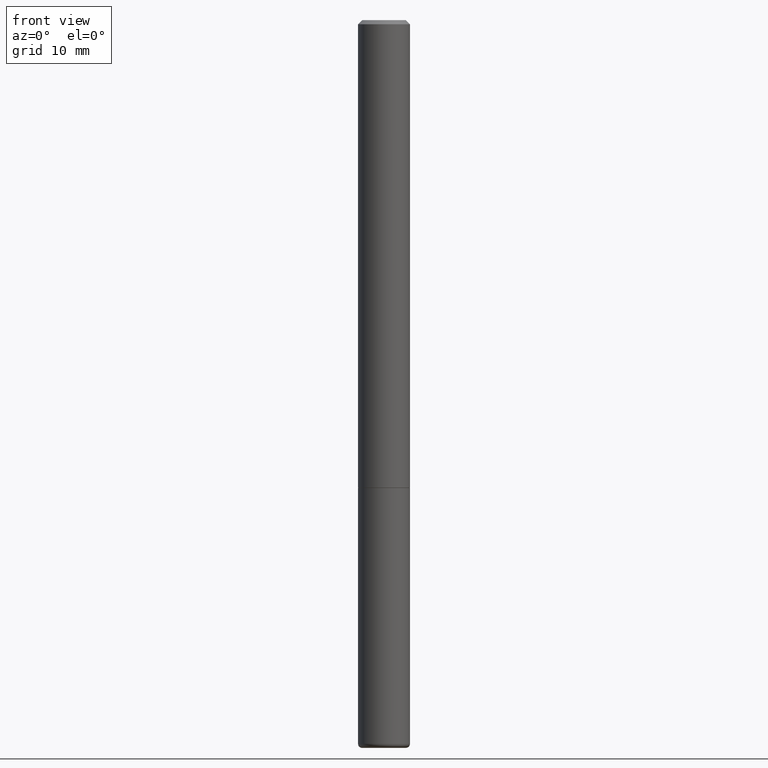
[diagram: clean part render]
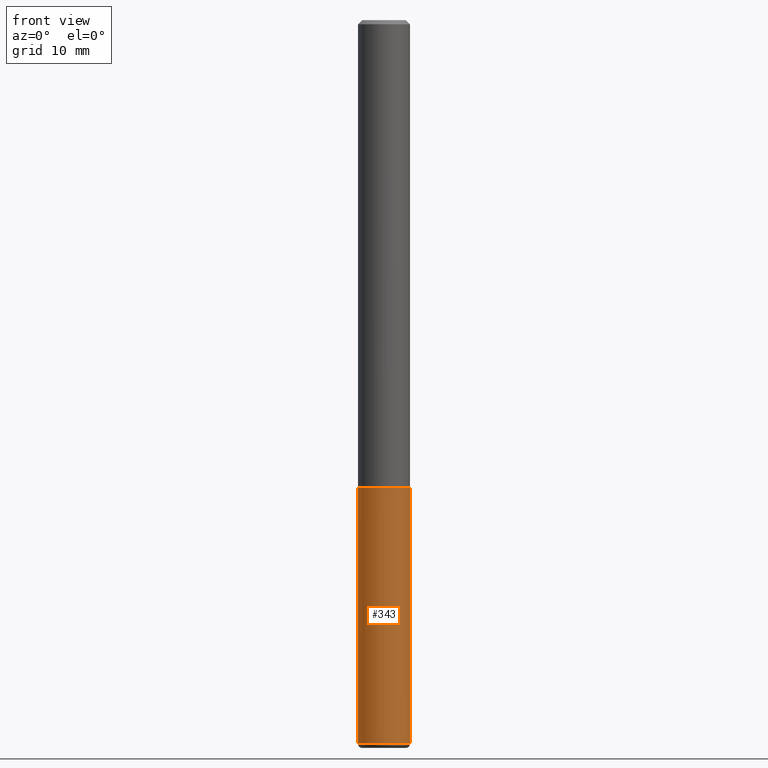
[diagram: same view with one face highlighted and labeled with its STEP entity id]
A machine part, front view. The second image highlights one B-rep face of the part: STEP entity #343.
In plain terms, the highlighted cylindrical surface (edge-blend (fillet) strip) has radius 3.175 mm, axis along (-0, 0, 1).
Its self-contained STEP definition (entity closure, byte-faithful):
#9 = VERTEX_POINT ( 'NONE', #140 ) ;
#11 = CYLINDRICAL_SURFACE ( 'NONE', #457, 0.1250000000000000278 ) ;
#15 = VERTEX_POINT ( 'NONE', #224 ) ;
#29 = DIRECTION ( 'NONE',  ( -2.445468806185136877E-29, 3.491481338843145188E-15, 1.000000000000000000 ) ) ;
#48 = AXIS2_PLACEMENT_3D ( 'NONE', #311, #149, #83 ) ;
#49 = CARTESIAN_POINT ( 'NONE',  ( -0.1250000000000000278, -9.114916945534594439E-15, -3.480000761538716514 ) ) ;
#68 = EDGE_CURVE ( 'NONE', #340, #9, #297, .T. ) ;
#69 = CARTESIAN_POINT ( 'NONE',  ( 0.1250000000000000278, -8.728703347107836346E-16, 6.095220969744921142E-30 ) ) ;
#78 = CARTESIAN_POINT ( 'NONE',  ( 0.1250000000000000278, -8.728703347107860209E-15, -2.249999999999999556 ) ) ;
#83 = DIRECTION ( 'NONE',  ( 1.000000000000000000, -6.982962677686261189E-15, 0.000000000000000000 ) ) ;
#85 = CARTESIAN_POINT ( 'NONE',  ( 5.502304813916556222E-29, -7.855833012397075293E-15, -2.249999999999999556 ) ) ;
#93 = EDGE_LOOP ( 'NONE', ( #207, #436, #284, #320 ) ) ;
#102 = EDGE_CURVE ( 'NONE', #15, #173, #379, .T. ) ;
#140 = CARTESIAN_POINT ( 'NONE',  ( -0.1250000000000000278, -9.114916945534594439E-15, -2.249999999999999556 ) ) ;
#149 = DIRECTION ( 'NONE',  ( -2.445468806185136597E-29, 3.491481338843145583E-15, 1.000000000000000000 ) ) ;
#152 = VECTOR ( 'NONE', #29, 39.37007874015748143 ) ;
#165 = CARTESIAN_POINT ( 'NONE',  ( 0.000000000000000000, 0.000000000000000000, 0.000000000000000000 ) ) ;
#173 = VERTEX_POINT ( 'NONE', #78 ) ;
#183 = EDGE_CURVE ( 'NONE', #340, #15, #195, .T. ) ;
#195 = CIRCLE ( 'NONE', #48, 0.1250000000000000278 ) ;
#206 = FACE_OUTER_BOUND ( 'NONE', #93, .T. ) ;
#207 = ORIENTED_EDGE ( 'NONE', *, *, #68, .F. ) ;
#224 = CARTESIAN_POINT ( 'NONE',  ( 0.1250000000000000278, -1.302322805278314581E-14, -3.480000761538716514 ) ) ;
#227 = DIRECTION ( 'NONE',  ( -2.445468806185136877E-29, 3.491481338843145188E-15, 1.000000000000000000 ) ) ;
#240 = DIRECTION ( 'NONE',  ( -2.445468806185136597E-29, 3.491481338843145583E-15, 1.000000000000000000 ) ) ;
#262 = DIRECTION ( 'NONE',  ( 1.000000000000000000, -6.982962677686267499E-15, 4.876176775795935793E-29 ) ) ;
#284 = ORIENTED_EDGE ( 'NONE', *, *, #102, .T. ) ;
#297 = LINE ( 'NONE', #376, #483 ) ;
#311 = CARTESIAN_POINT ( 'NONE',  ( 8.510233307843451119E-29, -1.215035771807236405E-14, -3.480000761538716514 ) ) ;
#313 = EDGE_CURVE ( 'NONE', #9, #173, #429, .T. ) ;
#320 = ORIENTED_EDGE ( 'NONE', *, *, #313, .F. ) ;
#340 = VERTEX_POINT ( 'NONE', #49 ) ;
#343 = ADVANCED_FACE ( 'NONE', ( #206 ), #11, .T. ) ;
#376 = CARTESIAN_POINT ( 'NONE',  ( -0.1250000000000000278, 8.881784197001254296E-16, -6.148668862818634329E-30 ) ) ;
#379 = LINE ( 'NONE', #69, #152 ) ;
#390 = DIRECTION ( 'NONE',  ( 1.000000000000000000, -6.982962677686269077E-15, 0.000000000000000000 ) ) ;
#429 = CIRCLE ( 'NONE', #476, 0.1250000000000000278 ) ;
#436 = ORIENTED_EDGE ( 'NONE', *, *, #183, .T. ) ;
#450 = DIRECTION ( 'NONE',  ( -2.445468806185136597E-29, 3.491481338843145583E-15, 1.000000000000000000 ) ) ;
#457 = AXIS2_PLACEMENT_3D ( 'NONE', #165, #450, #262 ) ;
#476 = AXIS2_PLACEMENT_3D ( 'NONE', #85, #240, #390 ) ;
#483 = VECTOR ( 'NONE', #227, 39.37007874015748143 ) ;